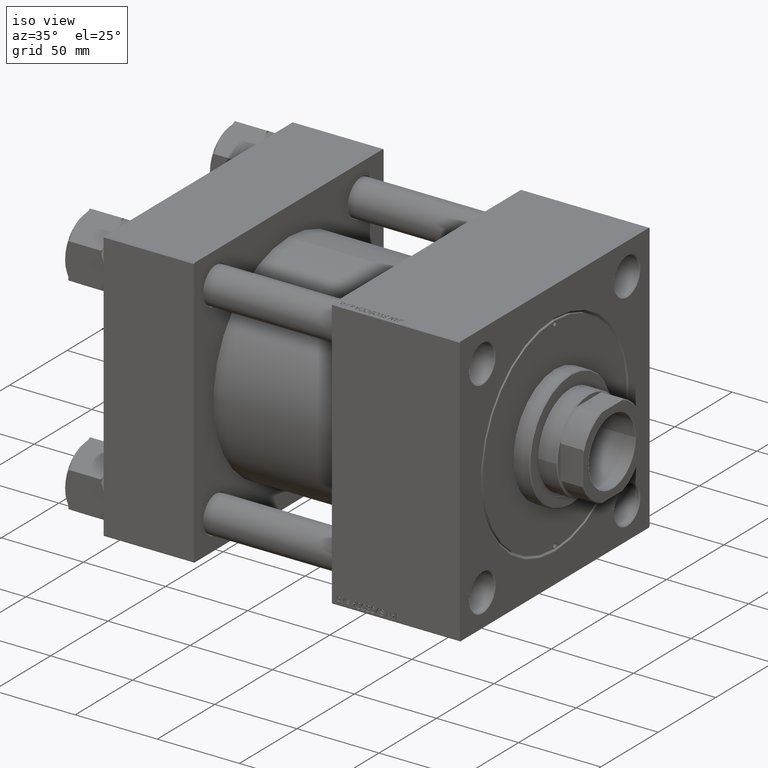
[diagram: clean part render]
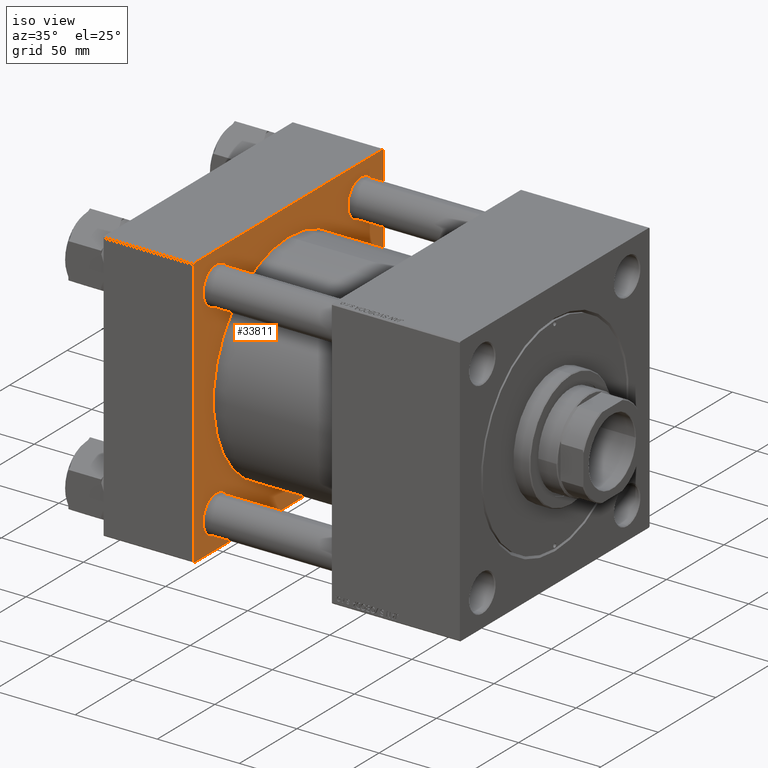
[diagram: same view with one face highlighted and labeled with its STEP entity id]
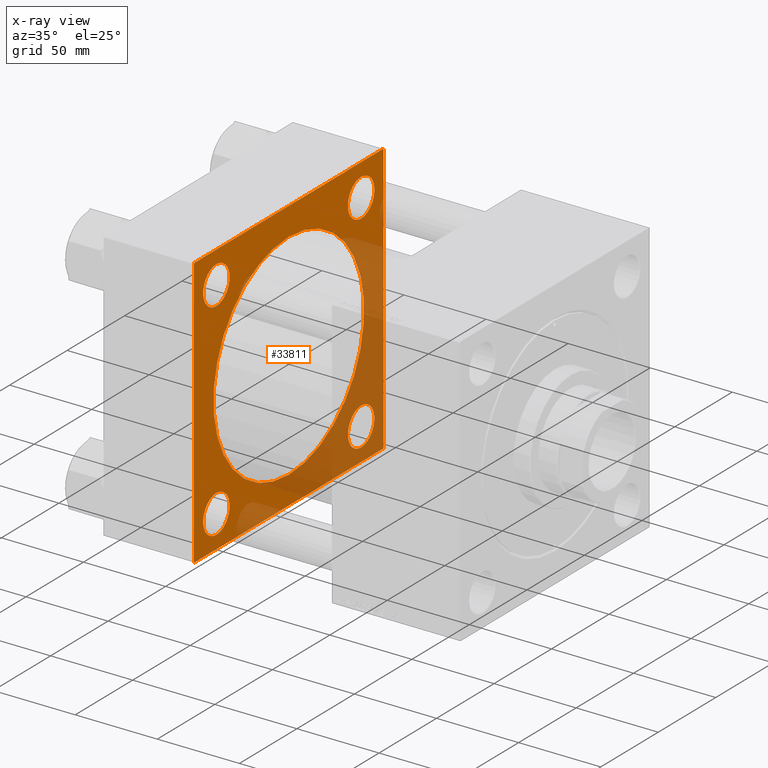
[diagram: x-ray of the same camera — body ghosted, the highlighted face saturated]
A machine part, iso view. The second image highlights one B-rep face of the part: STEP entity #33811.
The next image is the same camera in x-ray: the body ghosted, the highlighted face saturated — about 35% of this face is hidden behind the body in this view.
In plain terms, the highlighted planar face has unit normal (-1, 0, 0).
Its self-contained STEP definition (entity closure, byte-faithful):
#160 = ORIENTED_EDGE ( 'NONE', *, *, #11319, .T. ) ;
#960 = LINE ( 'NONE', #32360, #24618 ) ;
#1212 = ORIENTED_EDGE ( 'NONE', *, *, #2981, .T. ) ;
#1339 = VERTEX_POINT ( 'NONE', #21781 ) ;
#1395 = AXIS2_PLACEMENT_3D ( 'NONE', #4811, #32358, #20270 ) ;
#1955 = CARTESIAN_POINT ( 'NONE',  ( 54.99999999999999289, -2.602085213965210642E-15, 65.50000000000001421 ) ) ;
#2156 = AXIS2_PLACEMENT_3D ( 'NONE', #25767, #41726, #45079 ) ;
#2856 = AXIS2_PLACEMENT_3D ( 'NONE', #37030, #5354, #13860 ) ;
#2981 = EDGE_CURVE ( 'NONE', #21228, #49766, #27674, .T. ) ;
#2987 = EDGE_CURVE ( 'NONE', #33394, #8018, #31801, .T. ) ;
#3036 = VERTEX_POINT ( 'NONE', #39025 ) ;
#3998 = DIRECTION ( 'NONE',  ( 0.000000000000000000, 0.000000000000000000, 1.000000000000000000 ) ) ;
#4313 = ORIENTED_EDGE ( 'NONE', *, *, #30188, .T. ) ;
#4811 = CARTESIAN_POINT ( 'NONE',  ( 55.00000000000000000, -62.94999999999998153, 62.95000000000001705 ) ) ;
#4844 = FACE_BOUND ( 'NONE', #49121, .T. ) ;
#5354 = DIRECTION ( 'NONE',  ( -1.000000000000000000, 0.000000000000000000, 0.000000000000000000 ) ) ;
#5394 = CARTESIAN_POINT ( 'NONE',  ( 54.99999999999999289, -2.602085213965210642E-15, 0.000000000000000000 ) ) ;
#5547 = CIRCLE ( 'NONE', #40907, 65.50000000000001421 ) ;
#5776 = DIRECTION ( 'NONE',  ( -1.000000000000000000, 0.000000000000000000, 0.000000000000000000 ) ) ;
#6389 = AXIS2_PLACEMENT_3D ( 'NONE', #41051, #5776, #37190 ) ;
#7022 = EDGE_LOOP ( 'NONE', ( #23891, #40728, #22834, #1212, #33883, #13166, #47489, #4313 ) ) ;
#7158 = CIRCLE ( 'NONE', #20293, 65.50000000000001421 ) ;
#7271 = CIRCLE ( 'NONE', #36055, 11.49999999999995381 ) ;
#7967 = DIRECTION ( 'NONE',  ( 0.000000000000000000, 0.7071067811865376918, -0.7071067811865574537 ) ) ;
#8018 = VERTEX_POINT ( 'NONE', #19259 ) ;
#8051 = EDGE_CURVE ( 'NONE', #27239, #17854, #35947, .T. ) ;
#8109 = CARTESIAN_POINT ( 'NONE',  ( 55.00000000000000000, 82.00000000000005684, 82.50000000000002842 ) ) ;
#8405 = VERTEX_POINT ( 'NONE', #41735 ) ;
#8480 = CIRCLE ( 'NONE', #47143, 11.49999999999995381 ) ;
#8614 = EDGE_CURVE ( 'NONE', #1339, #21565, #7158, .T. ) ;
#9700 = CIRCLE ( 'NONE', #18740, 11.49999999999995381 ) ;
#9769 = DIRECTION ( 'NONE',  ( 1.000000000000000000, -0.000000000000000000, -0.000000000000000000 ) ) ;
#9788 = CARTESIAN_POINT ( 'NONE',  ( 55.00000000000000000, -82.49999999999997158, 82.00000000000001421 ) ) ;
#10018 = DIRECTION ( 'NONE',  ( 0.000000000000000000, 0.000000000000000000, 1.000000000000000000 ) ) ;
#10732 = EDGE_CURVE ( 'NONE', #17854, #27239, #9700, .T. ) ;
#10868 = VERTEX_POINT ( 'NONE', #32426 ) ;
#11224 = DIRECTION ( 'NONE',  ( 0.000000000000000000, -0.7071067811865474617, 0.7071067811865474617 ) ) ;
#11319 = EDGE_CURVE ( 'NONE', #8405, #35909, #7271, .T. ) ;
#12723 = VECTOR ( 'NONE', #11224, 1000.000000000000114 ) ;
#13013 = CARTESIAN_POINT ( 'NONE',  ( 55.00000000000000000, -81.99999999999997158, 82.50000000000001421 ) ) ;
#13166 = ORIENTED_EDGE ( 'NONE', *, *, #18055, .T. ) ;
#13713 = CIRCLE ( 'NONE', #2156, 11.49999999999995381 ) ;
#13860 = DIRECTION ( 'NONE',  ( 0.000000000000000000, 0.000000000000000000, 1.000000000000000000 ) ) ;
#14015 = DIRECTION ( 'NONE',  ( -1.000000000000000000, 0.000000000000000000, 0.000000000000000000 ) ) ;
#14155 = CARTESIAN_POINT ( 'NONE',  ( 55.00000000000000000, 62.95000000000000284, -51.45000000000005258 ) ) ;
#15965 = CARTESIAN_POINT ( 'NONE',  ( 55.00000000000000000, -62.94999999999998153, 62.95000000000001705 ) ) ;
#17854 = VERTEX_POINT ( 'NONE', #24690 ) ;
#18055 = EDGE_CURVE ( 'NONE', #26269, #33394, #960, .T. ) ;
#18106 = CIRCLE ( 'NONE', #39500, 11.49999999999995381 ) ;
#18118 = CARTESIAN_POINT ( 'NONE',  ( 55.00000000000000000, -62.94999999999998153, -62.95000000000001705 ) ) ;
#18408 = EDGE_CURVE ( 'NONE', #21228, #10868, #37424, .T. ) ;
#18451 = CARTESIAN_POINT ( 'NONE',  ( 55.00000000000000000, -82.00000000000000000, -82.50000000000000000 ) ) ;
#18613 = CARTESIAN_POINT ( 'NONE',  ( 55.00000000000000000, 82.50000000000002842, 82.50000000000002842 ) ) ;
#18740 = AXIS2_PLACEMENT_3D ( 'NONE', #15965, #39645, #47101 ) ;
#18940 = EDGE_CURVE ( 'NONE', #29535, #10868, #27413, .T. ) ;
#19025 = CARTESIAN_POINT ( 'NONE',  ( 55.00000000000000000, 82.50000000000002842, 82.50000000000002842 ) ) ;
#19259 = CARTESIAN_POINT ( 'NONE',  ( 55.00000000000000000, -82.50000000000000000, -81.99999999999998579 ) ) ;
#19745 = EDGE_CURVE ( 'NONE', #29535, #45776, #35615, .T. ) ;
#20270 = DIRECTION ( 'NONE',  ( 0.000000000000000000, 0.000000000000000000, 1.000000000000000000 ) ) ;
#20293 = AXIS2_PLACEMENT_3D ( 'NONE', #5394, #9769, #10018 ) ;
#20454 = EDGE_CURVE ( 'NONE', #28499, #3036, #18106, .T. ) ;
#20490 = DIRECTION ( 'NONE',  ( -1.000000000000000000, 0.000000000000000000, 0.000000000000000000 ) ) ;
#21228 = VERTEX_POINT ( 'NONE', #40894 ) ;
#21565 = VERTEX_POINT ( 'NONE', #1955 ) ;
#21781 = CARTESIAN_POINT ( 'NONE',  ( 54.99999999999999289, 5.419351320449953395E-15, -65.50000000000001421 ) ) ;
#22094 = ORIENTED_EDGE ( 'NONE', *, *, #44130, .T. ) ;
#22471 = EDGE_CURVE ( 'NONE', #35909, #8405, #32179, .T. ) ;
#22834 = ORIENTED_EDGE ( 'NONE', *, *, #18408, .F. ) ;
#23603 = ORIENTED_EDGE ( 'NONE', *, *, #22471, .T. ) ;
#23646 = DIRECTION ( 'NONE',  ( 0.000000000000000000, 0.000000000000000000, 1.000000000000000000 ) ) ;
#23891 = ORIENTED_EDGE ( 'NONE', *, *, #19745, .F. ) ;
#24405 = FACE_BOUND ( 'NONE', #25706, .T. ) ;
#24618 = VECTOR ( 'NONE', #44192, 1000.000000000000114 ) ;
#24666 = FACE_BOUND ( 'NONE', #46790, .T. ) ;
#24690 = CARTESIAN_POINT ( 'NONE',  ( 55.00000000000000000, -62.94999999999998153, 74.44999999999997442 ) ) ;
#25142 = ORIENTED_EDGE ( 'NONE', *, *, #8614, .F. ) ;
#25343 = DIRECTION ( 'NONE',  ( 0.000000000000000000, 0.000000000000000000, 1.000000000000000000 ) ) ;
#25706 = EDGE_LOOP ( 'NONE', ( #37999, #39178 ) ) ;
#25767 = CARTESIAN_POINT ( 'NONE',  ( 55.00000000000000000, 62.95000000000000284, 62.95000000000000284 ) ) ;
#26269 = VERTEX_POINT ( 'NONE', #13013 ) ;
#26614 = ORIENTED_EDGE ( 'NONE', *, *, #8051, .T. ) ;
#27239 = VERTEX_POINT ( 'NONE', #37148 ) ;
#27412 = ORIENTED_EDGE ( 'NONE', *, *, #41105, .T. ) ;
#27413 = LINE ( 'NONE', #35149, #37009 ) ;
#27674 = LINE ( 'NONE', #8109, #12723 ) ;
#27939 = CARTESIAN_POINT ( 'NONE',  ( 55.00000000000000000, 62.95000000000000284, -62.95000000000000284 ) ) ;
#28065 = CARTESIAN_POINT ( 'NONE',  ( 55.00000000000000000, 62.95000000000000284, 51.45000000000005258 ) ) ;
#28499 = VERTEX_POINT ( 'NONE', #14155 ) ;
#28565 = EDGE_CURVE ( 'NONE', #49766, #26269, #38590, .T. ) ;
#28789 = FACE_OUTER_BOUND ( 'NONE', #7022, .T. ) ;
#28950 = DIRECTION ( 'NONE',  ( 0.000000000000000000, 0.000000000000000000, 1.000000000000000000 ) ) ;
#29001 = CARTESIAN_POINT ( 'NONE',  ( 55.00000000000000000, 82.00000000000005684, 82.50000000000002842 ) ) ;
#29535 = VERTEX_POINT ( 'NONE', #49600 ) ;
#30100 = EDGE_LOOP ( 'NONE', ( #26614, #44644 ) ) ;
#30188 = EDGE_CURVE ( 'NONE', #8018, #45776, #32678, .T. ) ;
#30840 = EDGE_CURVE ( 'NONE', #3036, #28499, #8480, .T. ) ;
#31801 = LINE ( 'NONE', #34911, #48068 ) ;
#32031 = VECTOR ( 'NONE', #45142, 1000.000000000000000 ) ;
#32179 = CIRCLE ( 'NONE', #36304, 11.49999999999995381 ) ;
#32358 = DIRECTION ( 'NONE',  ( -1.000000000000000000, 0.000000000000000000, 0.000000000000000000 ) ) ;
#32360 = CARTESIAN_POINT ( 'NONE',  ( 55.00000000000000000, -82.49999999999997158, 82.00000000000001421 ) ) ;
#32426 = CARTESIAN_POINT ( 'NONE',  ( 55.00000000000000000, 82.50000000000002842, -82.00000000000000000 ) ) ;
#32678 = LINE ( 'NONE', #39643, #35644 ) ;
#32818 = CARTESIAN_POINT ( 'NONE',  ( 54.99999999999999289, -2.602085213965210642E-15, 0.000000000000000000 ) ) ;
#33318 = CARTESIAN_POINT ( 'NONE',  ( 55.00000000000000000, -62.94999999999998153, -51.45000000000006679 ) ) ;
#33394 = VERTEX_POINT ( 'NONE', #9788 ) ;
#33675 = CARTESIAN_POINT ( 'NONE',  ( 55.00000000000000000, 62.95000000000000284, 74.44999999999996021 ) ) ;
#33811 = ADVANCED_FACE ( 'NONE', ( #36006, #24405, #40122, #4844, #24666, #28789 ), #48868, .F. ) ;
#33871 = VERTEX_POINT ( 'NONE', #33675 ) ;
#33883 = ORIENTED_EDGE ( 'NONE', *, *, #28565, .T. ) ;
#34911 = CARTESIAN_POINT ( 'NONE',  ( 55.00000000000000000, -82.49999999999997158, 82.50000000000001421 ) ) ;
#35086 = EDGE_LOOP ( 'NONE', ( #160, #23603 ) ) ;
#35149 = CARTESIAN_POINT ( 'NONE',  ( 55.00000000000000000, 82.50000000000002842, -82.00000000000000000 ) ) ;
#35615 = LINE ( 'NONE', #38727, #48556 ) ;
#35644 = VECTOR ( 'NONE', #7967, 999.9999999999998863 ) ;
#35909 = VERTEX_POINT ( 'NONE', #33318 ) ;
#35947 = CIRCLE ( 'NONE', #1395, 11.49999999999995381 ) ;
#36006 = FACE_BOUND ( 'NONE', #35086, .T. ) ;
#36055 = AXIS2_PLACEMENT_3D ( 'NONE', #18118, #14015, #42048 ) ;
#36304 = AXIS2_PLACEMENT_3D ( 'NONE', #41054, #37435, #25343 ) ;
#36516 = VERTEX_POINT ( 'NONE', #28065 ) ;
#37009 = VECTOR ( 'NONE', #46980, 1000.000000000000114 ) ;
#37030 = CARTESIAN_POINT ( 'NONE',  ( 55.00000000000000000, 0.000000000000000000, 0.000000000000000000 ) ) ;
#37148 = CARTESIAN_POINT ( 'NONE',  ( 55.00000000000000000, -62.94999999999998153, 51.45000000000006679 ) ) ;
#37190 = DIRECTION ( 'NONE',  ( 0.000000000000000000, 0.000000000000000000, 1.000000000000000000 ) ) ;
#37424 = LINE ( 'NONE', #18613, #32031 ) ;
#37435 = DIRECTION ( 'NONE',  ( -1.000000000000000000, 0.000000000000000000, 0.000000000000000000 ) ) ;
#37629 = CIRCLE ( 'NONE', #6389, 11.49999999999995381 ) ;
#37999 = ORIENTED_EDGE ( 'NONE', *, *, #30840, .T. ) ;
#38550 = ORIENTED_EDGE ( 'NONE', *, *, #44091, .F. ) ;
#38590 = LINE ( 'NONE', #19025, #48745 ) ;
#38727 = CARTESIAN_POINT ( 'NONE',  ( 55.00000000000000000, 82.50000000000002842, -82.49999999999997158 ) ) ;
#38973 = DIRECTION ( 'NONE',  ( 0.000000000000000000, -1.000000000000000000, -1.682156097916903588E-16 ) ) ;
#39025 = CARTESIAN_POINT ( 'NONE',  ( 55.00000000000000000, 62.95000000000000284, -74.44999999999996021 ) ) ;
#39178 = ORIENTED_EDGE ( 'NONE', *, *, #20454, .T. ) ;
#39500 = AXIS2_PLACEMENT_3D ( 'NONE', #48359, #47846, #23646 ) ;
#39643 = CARTESIAN_POINT ( 'NONE',  ( 55.00000000000000000, -82.00000000000000000, -82.50000000000000000 ) ) ;
#39645 = DIRECTION ( 'NONE',  ( -1.000000000000000000, 0.000000000000000000, 0.000000000000000000 ) ) ;
#40122 = FACE_BOUND ( 'NONE', #30100, .T. ) ;
#40728 = ORIENTED_EDGE ( 'NONE', *, *, #18940, .T. ) ;
#40894 = CARTESIAN_POINT ( 'NONE',  ( 55.00000000000000000, 82.50000000000002842, 82.00000000000005684 ) ) ;
#40907 = AXIS2_PLACEMENT_3D ( 'NONE', #32818, #48529, #28950 ) ;
#41051 = CARTESIAN_POINT ( 'NONE',  ( 55.00000000000000000, 62.95000000000000284, 62.95000000000000284 ) ) ;
#41054 = CARTESIAN_POINT ( 'NONE',  ( 55.00000000000000000, -62.94999999999998153, -62.95000000000001705 ) ) ;
#41105 = EDGE_CURVE ( 'NONE', #33871, #36516, #13713, .T. ) ;
#41726 = DIRECTION ( 'NONE',  ( -1.000000000000000000, 0.000000000000000000, 0.000000000000000000 ) ) ;
#41735 = CARTESIAN_POINT ( 'NONE',  ( 55.00000000000000000, -62.94999999999998153, -74.44999999999997442 ) ) ;
#42048 = DIRECTION ( 'NONE',  ( 0.000000000000000000, 0.000000000000000000, 1.000000000000000000 ) ) ;
#42947 = DIRECTION ( 'NONE',  ( 0.000000000000000000, -1.000000000000000000, -8.410780489584519171E-17 ) ) ;
#44091 = EDGE_CURVE ( 'NONE', #21565, #1339, #5547, .T. ) ;
#44130 = EDGE_CURVE ( 'NONE', #36516, #33871, #37629, .T. ) ;
#44192 = DIRECTION ( 'NONE',  ( -0.000000000000000000, -0.7071067811865474617, -0.7071067811865474617 ) ) ;
#44644 = ORIENTED_EDGE ( 'NONE', *, *, #10732, .T. ) ;
#45079 = DIRECTION ( 'NONE',  ( 0.000000000000000000, 0.000000000000000000, 1.000000000000000000 ) ) ;
#45142 = DIRECTION ( 'NONE',  ( 0.000000000000000000, 0.000000000000000000, -1.000000000000000000 ) ) ;
#45776 = VERTEX_POINT ( 'NONE', #18451 ) ;
#46790 = EDGE_LOOP ( 'NONE', ( #38550, #25142 ) ) ;
#46980 = DIRECTION ( 'NONE',  ( -0.000000000000000000, 0.7071067811865474617, 0.7071067811865474617 ) ) ;
#47101 = DIRECTION ( 'NONE',  ( 0.000000000000000000, 0.000000000000000000, 1.000000000000000000 ) ) ;
#47143 = AXIS2_PLACEMENT_3D ( 'NONE', #27939, #20490, #3998 ) ;
#47489 = ORIENTED_EDGE ( 'NONE', *, *, #2987, .T. ) ;
#47500 = DIRECTION ( 'NONE',  ( 0.000000000000000000, -1.682156097916903588E-16, -1.000000000000000000 ) ) ;
#47846 = DIRECTION ( 'NONE',  ( -1.000000000000000000, 0.000000000000000000, 0.000000000000000000 ) ) ;
#48068 = VECTOR ( 'NONE', #47500, 1000.000000000000000 ) ;
#48359 = CARTESIAN_POINT ( 'NONE',  ( 55.00000000000000000, 62.95000000000000284, -62.95000000000000284 ) ) ;
#48529 = DIRECTION ( 'NONE',  ( 1.000000000000000000, -0.000000000000000000, -0.000000000000000000 ) ) ;
#48556 = VECTOR ( 'NONE', #38973, 1000.000000000000000 ) ;
#48745 = VECTOR ( 'NONE', #42947, 1000.000000000000000 ) ;
#48868 = PLANE ( 'NONE',  #2856 ) ;
#49121 = EDGE_LOOP ( 'NONE', ( #22094, #27412 ) ) ;
#49600 = CARTESIAN_POINT ( 'NONE',  ( 55.00000000000000000, 82.00000000000005684, -82.49999999999997158 ) ) ;
#49766 = VERTEX_POINT ( 'NONE', #29001 ) ;